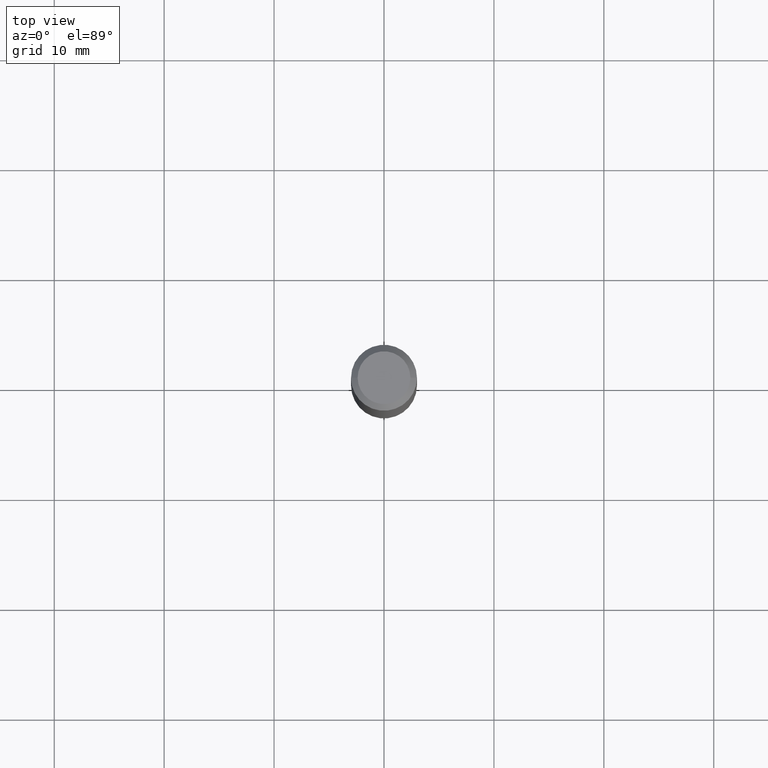
[diagram: clean part render]
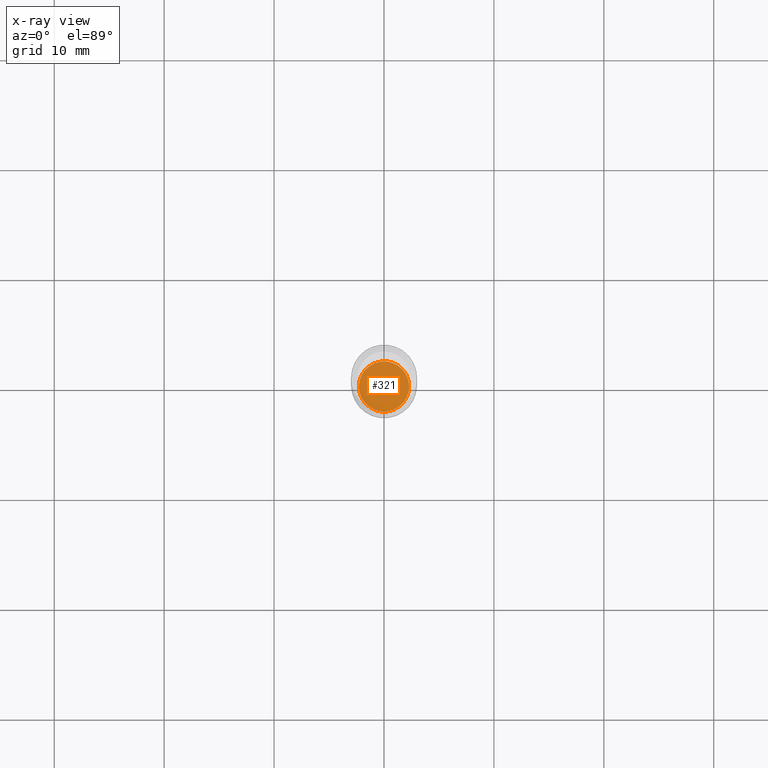
[diagram: x-ray — body ghosted, one internal face saturated and labeled with its STEP entity id]
A machine part, top view, then the same camera in x-ray: the body is ghosted and one INTERNAL B-rep face — a face not visible from any outside direction — is saturated and labeled: STEP entity #321.
In plain terms, the highlighted planar face has unit normal (-0, 0, 1).
Its self-contained STEP definition (entity closure, byte-faithful):
#52 = DIRECTION ( 'NONE',  ( -2.445468806185136597E-29, 3.491481338843145583E-15, 1.000000000000000000 ) ) ;
#62 = CARTESIAN_POINT ( 'NONE',  ( 0.09005000000000000504, -7.034287453367283370E-15, -1.834599999999999786 ) ) ;
#148 = EDGE_LOOP ( 'NONE', ( #426, #233 ) ) ;
#165 = AXIS2_PLACEMENT_3D ( 'NONE', #466, #216, #399 ) ;
#190 = DIRECTION ( 'NONE',  ( -2.438088387897960049E-29, 3.491481338843145188E-15, 1.000000000000000000 ) ) ;
#216 = DIRECTION ( 'NONE',  ( -2.445468806185136597E-29, 3.491481338843145583E-15, 1.000000000000000000 ) ) ;
#228 = AXIS2_PLACEMENT_3D ( 'NONE', #280, #52, #360 ) ;
#233 = ORIENTED_EDGE ( 'NONE', *, *, #236, .F. ) ;
#236 = EDGE_CURVE ( 'NONE', #412, #361, #455, .T. ) ;
#252 = CARTESIAN_POINT ( 'NONE',  ( -0.09005000000000000504, -5.762978703515552960E-15, -1.834599999999999786 ) ) ;
#254 = DIRECTION ( 'NONE',  ( 1.000000000000000000, -6.982962677686265922E-15, 4.876176775795935793E-29 ) ) ;
#258 = EDGE_CURVE ( 'NONE', #361, #412, #434, .T. ) ;
#280 = CARTESIAN_POINT ( 'NONE',  ( 4.486457071827251481E-29, -6.405471664241634119E-15, -1.834599999999999786 ) ) ;
#321 = ADVANCED_FACE ( 'NONE', ( #333 ), #411, .F. ) ;
#327 = CARTESIAN_POINT ( 'NONE',  ( 4.486457071827251481E-29, -6.405471664241634119E-15, -1.834599999999999786 ) ) ;
#333 = FACE_OUTER_BOUND ( 'NONE', #148, .T. ) ;
#360 = DIRECTION ( 'NONE',  ( 1.000000000000000000, -6.982962677686271444E-15, 0.000000000000000000 ) ) ;
#361 = VERTEX_POINT ( 'NONE', #62 ) ;
#399 = DIRECTION ( 'NONE',  ( 1.000000000000000000, -6.982962677686271444E-15, 0.000000000000000000 ) ) ;
#411 = PLANE ( 'NONE',  #463 ) ;
#412 = VERTEX_POINT ( 'NONE', #252 ) ;
#426 = ORIENTED_EDGE ( 'NONE', *, *, #258, .F. ) ;
#434 = CIRCLE ( 'NONE', #165, 0.09005000000000000504 ) ;
#455 = CIRCLE ( 'NONE', #228, 0.09005000000000000504 ) ;
#463 = AXIS2_PLACEMENT_3D ( 'NONE', #327, #190, #254 ) ;
#466 = CARTESIAN_POINT ( 'NONE',  ( 4.486457071827251481E-29, -6.405471664241634119E-15, -1.834599999999999786 ) ) ;